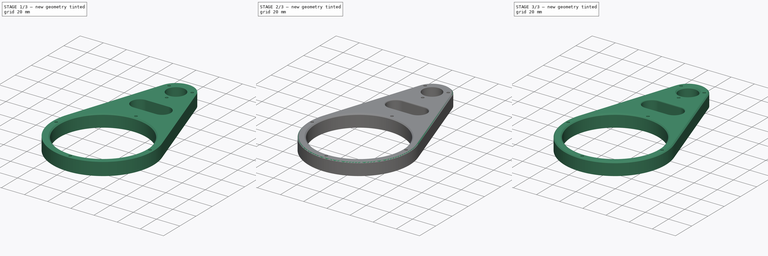
[diagram: build sequence overview — one tinted view per stage of 3, left to right]
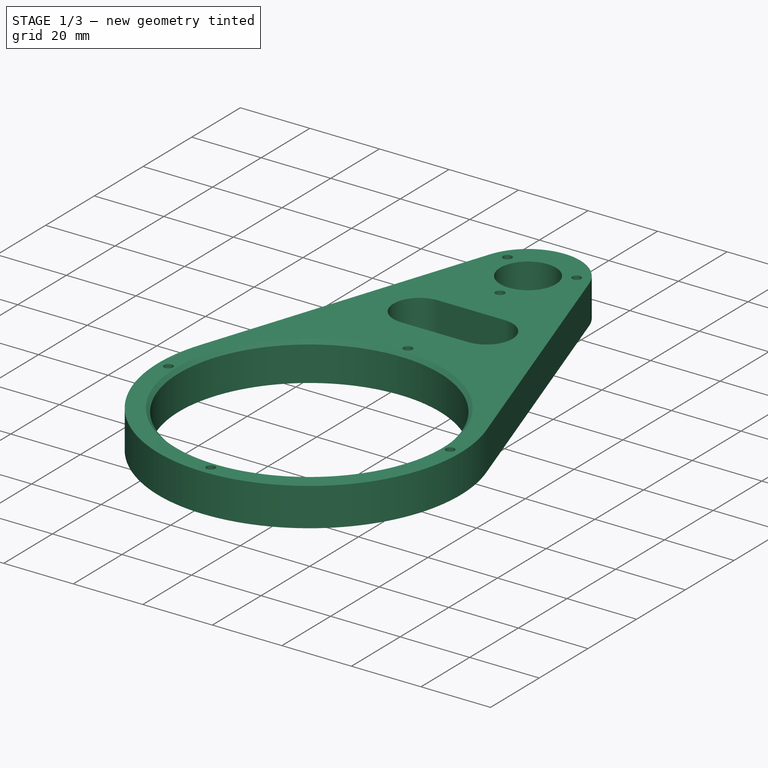
[diagram: stage 1 of 3 — iso view after this stage's code; geometry added in this stage tinted green]
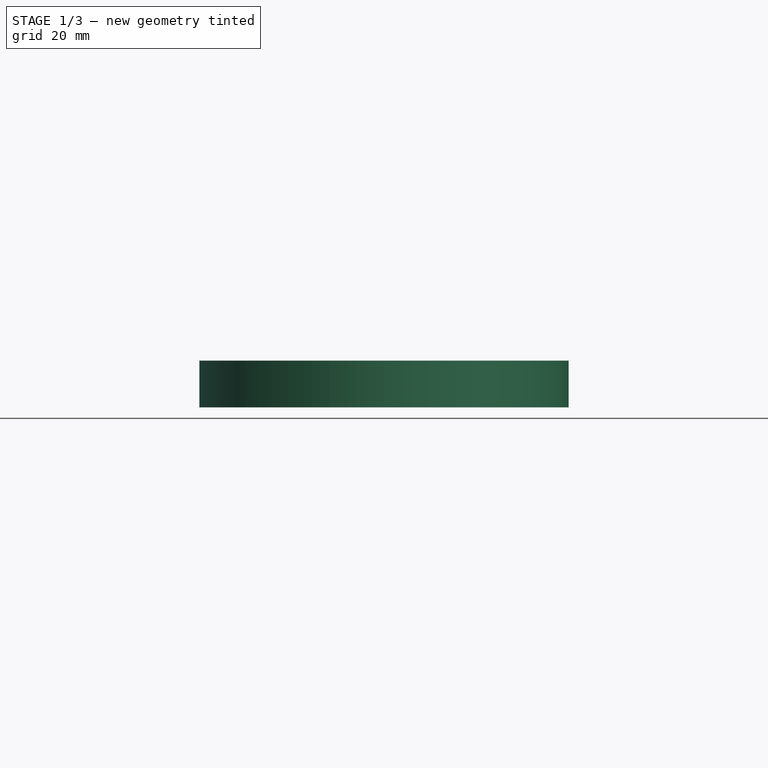
[diagram: stage 1 of 3 — front view after this stage's code; geometry added in this stage tinted green]
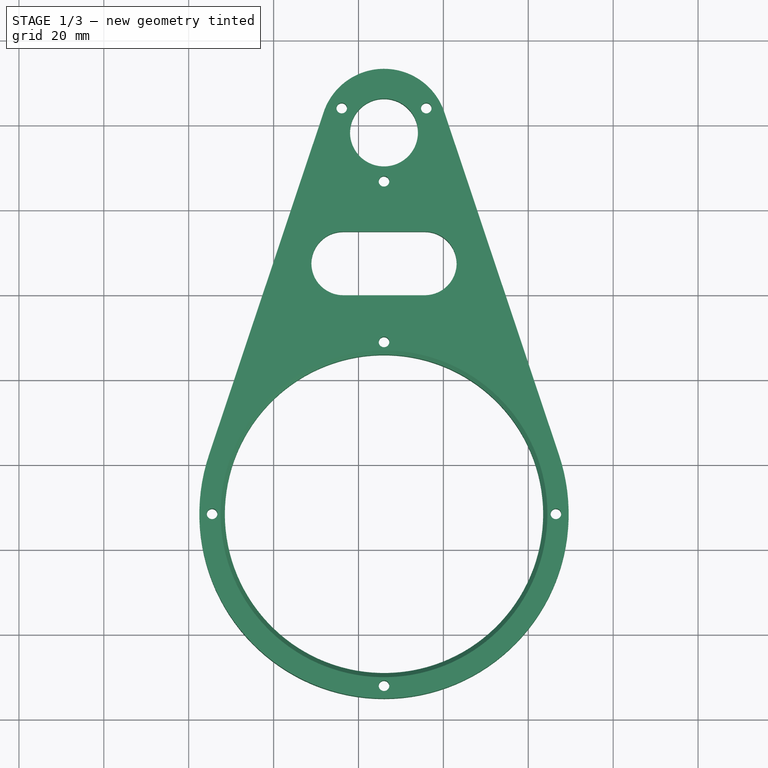
[diagram: stage 1 of 3 — top view after this stage's code; geometry added in this stage tinted green]
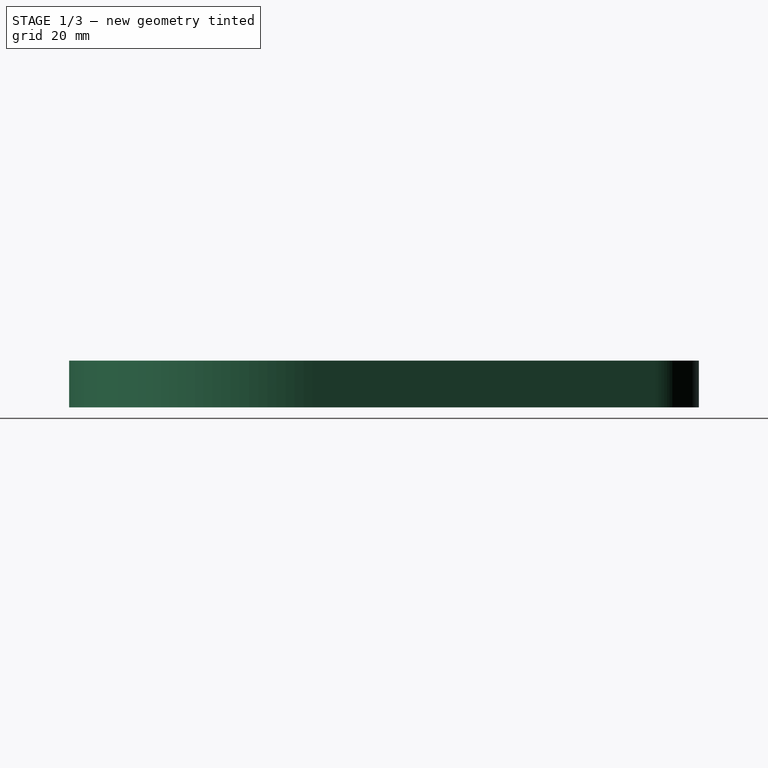
[diagram: stage 1 of 3 — right view after this stage's code; geometry added in this stage tinted green]
FCSTD DOCUMENT  (FreeCAD 0.19R24276 (Git))
Label: Shatun_L89_85__d75_d16
License: All rights reserved
LicenseURL: http://en.wikipedia.org/wiki/All_rights_reserved
objects: PartDesign::Chamfer×4, Sketcher::SketchObject×2, PartDesign::Pad×1, PartDesign::Fillet×1, PartDesign::Body×1
note: 15 computed .brp shape members not serialized (recipe doc carries the construction recipe); baked Part::Feature solids carry a one-line shape summary decoded from their .brp

FEATURE [Sketcher::SketchObject] Sketch  label="Sketch_paper_knife"
  FullyConstrained = false
  MapMode = 5
  Support = -> [XY_Plane]
  sketch-geometry (42):
    g0: Circle CenterX=0 CenterY=0 CenterZ=0 NormalX=0 NormalY=0 NormalZ=1 AngleXU=0 Radius=70
    g1: LineSegment StartX=0 StartY=0 StartZ=0 EndX=-30.5434 EndY=62.9849 EndZ=0
    g2: Circle CenterX=200 CenterY=0 CenterZ=0 NormalX=0 NormalY=0 NormalZ=1 AngleXU=0 Radius=70
    g3: LineSegment StartX=200 StartY=0 StartZ=0 EndX=169.457 EndY=62.9849 EndZ=0
    g4: LineSegment StartX=169.457 StartY=62.9849 StartZ=0 EndX=-30.5434 EndY=62.9849 EndZ=0
    g5: LineSegment StartX=-234.473 StartY=320.288 StartZ=0 EndX=-134.473 EndY=320.288 EndZ=0
    g6: LineSegment StartX=-224.473 StartY=338.288 StartZ=0 EndX=-124.473 EndY=338.288 EndZ=0
    g7: LineSegment StartX=-134.473 StartY=320.288 StartZ=0 EndX=-124.473 EndY=338.288 EndZ=0
    g8: LineSegment StartX=-234.473 StartY=320.288 StartZ=0 EndX=-224.473 EndY=338.288 EndZ=0
    g9: Circle CenterX=-140.473 CenterY=329.288 CenterZ=0 NormalX=0 NormalY=0 NormalZ=1 AngleXU=0 Radius=2.3784
    g10: LineSegment StartX=-233.473 StartY=322.088 StartZ=0 EndX=-133.473 EndY=322.088 EndZ=0
    g11: Circle CenterX=0 CenterY=0 CenterZ=0 NormalX=0 NormalY=0 NormalZ=1 AngleXU=0 Radius=37.5
    g12: Circle CenterX=200 CenterY=0 CenterZ=0 NormalX=0 NormalY=0 NormalZ=1 AngleXU=0 Radius=37.5
    g13: Circle CenterX=169.457 CenterY=62.9849 CenterZ=0 NormalX=0 NormalY=0 NormalZ=1 AngleXU=0 Radius=8
    g14: Circle CenterX=-30.5434 CenterY=62.9849 CenterZ=0 NormalX=0 NormalY=0 NormalZ=1 AngleXU=0 Radius=8
    g15: Circle CenterX=169.457 CenterY=62.9849 CenterZ=0 NormalX=0 NormalY=0 NormalZ=1 AngleXU=0 Radius=2.5
    g16: Circle CenterX=-30.5434 CenterY=62.9849 CenterZ=0 NormalX=0 NormalY=0 NormalZ=1 AngleXU=0 Radius=2.5
    g17: Circle CenterX=22.2785 CenterY=154.482 CenterZ=0 NormalX=0 NormalY=0 NormalZ=1 AngleXU=0 Radius=2.5
    g18: LineSegment StartX=-100.221 StartY=182.69 StartZ=0 EndX=22.2785 EndY=182.69 EndZ=0
    g19: ArcOfCircle CenterX=27.0798 CenterY=159.482 CenterZ=0 NormalX=0 NormalY=0 NormalZ=1 AngleXU=0 Radius=16 StartAngle=4.17347 EndAngle=5.96536
    g20: LineSegment StartX=27.0798 StartY=159.482 StartZ=0 EndX=27.0798 EndY=143.482 EndZ=0
    g21: ArcOfCircle CenterX=-75.7215 CenterY=162.006 CenterZ=0 NormalX=0 NormalY=0 NormalZ=1 AngleXU=0 Radius=8 StartAngle=3.71141 EndAngle=5.43055
    g22: LineSegment StartX=-107.721 StartY=168.69 StartZ=0 EndX=-100.221 EndY=182.69 EndZ=0
    g23: LineSegment StartX=-107.721 StartY=168.69 StartZ=0 EndX=-103.721 EndY=157.69 EndZ=0
    g24: ArcOfCircle CenterX=-18.2109 CenterY=83.6932 CenterZ=0 NormalX=0 NormalY=0 NormalZ=1 AngleXU=0 Radius=72.29 StartAngle=1.03221 EndAngle=1.56403
    g25: LineSegment StartX=-17.7215 StartY=155.982 StartZ=0 EndX=-70.4575 EndY=155.982 EndZ=0
    g26: LineSegment StartX=-82.4575 StartY=157.69 StartZ=0 EndX=-103.721 EndY=157.69 EndZ=0
    g27: ArcOfCircle CenterX=16.2785 CenterY=157.242 CenterZ=0 NormalX=0 NormalY=0 NormalZ=1 AngleXU=0 Radius=26.1461 StartAngle=6.17743 EndAngle=7.62244
    g28: LineSegment StartX=22.2785 StartY=154.482 StartZ=0 EndX=42.2785 EndY=154.482 EndZ=0
    g29: LineSegment StartX=22.2785 StartY=154.482 StartZ=0 EndX=22.2785 EndY=182.69 EndZ=0
    g30: ArcOfCircle CenterX=-96.7215 CenterY=168.69 CenterZ=0 NormalX=0 NormalY=0 NormalZ=1 AngleXU=0 Radius=2.5 StartAngle=1.5708 EndAngle=4.71239
    g31: ArcOfCircle CenterX=-6.72148 CenterY=168.69 CenterZ=0 NormalX=0 NormalY=0 NormalZ=1 AngleXU=0 Radius=2.5 StartAngle=4.71239 EndAngle=7.85398
    g32: LineSegment StartX=-96.7215 StartY=166.19 StartZ=0 EndX=-6.72148 EndY=166.19 EndZ=0
    g33: LineSegment StartX=-96.7215 StartY=171.19 StartZ=0 EndX=-6.72148 EndY=171.19 EndZ=0
    g34: LineSegment StartX=-27.3628 StartY=293.719 StartZ=0 EndX=-27.3628 EndY=353.575 EndZ=0
    g35: LineSegment StartX=-190.721 StartY=159.69 StartZ=0 EndX=-90.7215 EndY=159.69 EndZ=0
    g36: LineSegment StartX=-180.721 StartY=177.69 StartZ=0 EndX=-80.7215 EndY=177.69 EndZ=0
    g37: LineSegment StartX=-90.7215 StartY=159.69 StartZ=0 EndX=-80.7215 EndY=177.69 EndZ=0
    g38: LineSegment StartX=-190.721 StartY=159.69 StartZ=0 EndX=-180.721 EndY=177.69 EndZ=0
    g39: Circle CenterX=-96.7215 CenterY=168.69 CenterZ=0 NormalX=0 NormalY=0 NormalZ=1 AngleXU=0 Radius=2.3784
    g40: LineSegment StartX=-189.721 StartY=161.49 StartZ=0 EndX=-89.7215 EndY=161.49 EndZ=0
    g41: LineSegment StartX=-69.9968 StartY=0.665106 StartZ=0 EndX=-139.997 EndY=0.665106 EndZ=0
  constraints (110):
    c: Coincident(g0,g-1)
    c: Coincident(g1,g-1)
    c: PointOnObject(g1,g0)
    c: Diameter(g0) = 140
    c: PointOnObject(g2,g-1)
    c: DistanceX(g-1,g2) = 200
    c: Equal(g2,g0)
    c: Coincident(g3,g2)
    c: PointOnObject(g3,g2)
    c: Coincident(g4,g3)
    c: Coincident(g4,g1)
    c: DistanceX(g4,g4) = 200
    c: Horizontal(g5)
    c: Horizontal(g6)
    c: Coincident(g7,g5)
    c: Coincident(g7,g6)
    c: Coincident(g8,g5)
    c: Coincident(g6,g8)
    c: Parallel(g8,g7)
    c: DistanceY(g5,g6) = 18
    c: DistanceX(g5,g5) = 100
    c: DistanceX(g5,g6) = 110
    c: DistanceX(g9,g5) = 6
    c: DistanceY(g5,g9) = 9
    c: PointOnObject(g10,g8)
    c: PointOnObject(g10,g7)
    c: Horizontal(g10)
    c: DistanceY(g5,g10) = 1.8
    c: Coincident(g11,g-1)
    c: Coincident(g12,g2)
    c: Equal(g12,g11)
    c: Diameter(g12) = 75
    c: Coincident(g13,g3)
    c: Diameter(g13) = 16
    c: Coincident(g14,g1)
    c: Equal(g14,g13)
    c: Coincident(g15,g3)
    c: Coincident(g16,g1)
    c: Equal(g16,g15)
    c: Diameter(g15) = 5
    c: Diameter(g17) = 5
    c: Horizontal(g18)
    c: Coincident(g20,g19)
    c: PointOnObject(g20,g19)
    c: Vertical(g20)
    c: DistanceX(g21,g17) = 98
    c: Diameter(g21) = 16
    c: DistanceX(g21,g21) = 12
    c: Coincident(g23,g22)
    c: DistanceX(g23,g17) = 126
    c: DistanceY(g23,g22) = 11
    c: DistanceY(g23,g22) = 25
    c: DistanceX(g24,g17) = 40
    c: Coincident(g19,g24)
    c: Diameter(g24) = 144.58
    c: Coincident(g25,g24)
    c: Coincident(g25,g21)
    c: Horizontal(g25)
    c: Coincident(g26,g21)
    c: Coincident(g26,g23)
    c: Horizontal(g26)
    c: DistanceX(g22,g23) = 4
    c: Coincident(g27,g19)
    c: Coincident(g18,g27)
    c: Coincident(g18,g22)
    c: DistanceX(g22,g18) = 7.5
    c: Coincident(g28,g17)
    c: Horizontal(g28)
    c: DistanceY(g20,g17) = 11
    c: Diameter(g19) = 32
    c: Coincident(g28,g19)
    c: Coincident(g29,g17)
    c: Coincident(g29,g18)
    c: Vertical(g29)
    c: DistanceX(g27,g17) = 6
    c: DistanceY(g17,g27) = 2.76
    c: DistanceX(g17,g19) = 20
    c: Tangent(g30,g33) = 1.5708
    c: Tangent(g30,g32) = -1.5708
    c: Tangent(g32,g31) = -1.5708
    c: Tangent(g33,g31) = 1.5708
    c: Horizontal(g32)
    c: Equal(g30,g31)
    c: Diameter(g31) = 5
    c: Vertical(g34)
    c: Horizontal(g35)
    c: Horizontal(g36)
    c: Coincident(g37,g35)
    c: Coincident(g37,g36)
    c: Coincident(g38,g35)
    c: Coincident(g36,g38)
    c: Parallel(g38,g37)
    c: DistanceY(g35,g36) = 18
    c: Equal(g5,g35) = 100
    c: DistanceX(g35,g36) = 110
    c: DistanceX(g39,g35) = 6
    c: DistanceY(g35,g39) = 9
    c: PointOnObject(g40,g38)
    c: PointOnObject(g40,g37)
    c: Horizontal(g40)
    c: DistanceY(g35,g40) = 1.8
    c: DistanceY(g23,g30) = 11
    c: Coincident(g39,g30)
    c: DistanceX(g23,g30) = 7
    c: DistanceX(g23,g31) = 97
    c: PointOnObject(g41,g0)
    c: Horizontal(g41)
    c: DistanceX(g41,g41) = 70
    c: DistanceX(g19,g17) = 3.41
    c: DistanceY(g17,g24) = 1.5
FEATURE [Sketcher::SketchObject] Sketch001  label="Sketch001_master_sketch"
  FullyConstrained = false
  MapMode = 5
  Support = -> [XY_Plane]
  sketch-geometry (45):
    g0: Circle CenterX=0 CenterY=0 CenterZ=0 NormalX=0 NormalY=0 NormalZ=1 AngleXU=0 Radius=70
    g1: LineSegment StartX=0 StartY=0 StartZ=0 EndX=-30.5451 EndY=62.9841 EndZ=0
    g2: Circle CenterX=200 CenterY=0 CenterZ=0 NormalX=0 NormalY=0 NormalZ=1 AngleXU=0 Radius=70
    g3: LineSegment StartX=200 StartY=0 StartZ=0 EndX=169.455 EndY=62.9841 EndZ=0
    g4: LineSegment StartX=169.455 StartY=62.9841 StartZ=0 EndX=-30.5451 EndY=62.9841 EndZ=0
    g5: Circle CenterX=0 CenterY=0 CenterZ=0 NormalX=0 NormalY=0 NormalZ=1 AngleXU=0 Radius=37.5
    g6: Circle CenterX=200 CenterY=0 CenterZ=0 NormalX=0 NormalY=0 NormalZ=1 AngleXU=0 Radius=37.5
    g7: Circle CenterX=169.455 CenterY=62.9841 CenterZ=0 NormalX=0 NormalY=0 NormalZ=1 AngleXU=0 Radius=8
    g8: Circle CenterX=-30.5451 CenterY=62.9841 CenterZ=0 NormalX=0 NormalY=0 NormalZ=1 AngleXU=0 Radius=8
    g9: Circle CenterX=169.455 CenterY=62.9841 CenterZ=0 NormalX=0 NormalY=0 NormalZ=1 AngleXU=0 Radius=2.5
    g10: Circle CenterX=-30.5451 CenterY=62.9841 CenterZ=0 NormalX=0 NormalY=0 NormalZ=1 AngleXU=0 Radius=2.5
    g11: Circle CenterX=146.009 CenterY=208.38 CenterZ=0 NormalX=0 NormalY=0 NormalZ=1 AngleXU=0 Radius=37.5
    g12: Circle CenterX=146.009 CenterY=298.23 CenterZ=0 NormalX=0 NormalY=0 NormalZ=1 AngleXU=0 Radius=8
    g13: ArcOfCircle CenterX=146.009 CenterY=298.23 CenterZ=0 NormalX=0 NormalY=0 NormalZ=1 AngleXU=0 Radius=15 StartAngle=0.322771 EndAngle=2.81882
    g14: LineSegment StartX=146.009 StartY=298.23 StartZ=0 EndX=160.235 EndY=302.988 EndZ=0
    g15: LineSegment StartX=146.009 StartY=298.23 StartZ=0 EndX=131.784 EndY=302.988 EndZ=0
    g16: ArcOfCircle CenterX=146.009 CenterY=208.38 CenterZ=0 NormalX=0 NormalY=0 NormalZ=1 AngleXU=0 Radius=43.5 StartAngle=2.81882 EndAngle=6.60596
    g17: LineSegment StartX=146.009 StartY=208.38 StartZ=0 EndX=187.263 EndY=222.178 EndZ=0
    g18: LineSegment StartX=146.009 StartY=208.38 StartZ=0 EndX=104.756 EndY=222.178 EndZ=0
    g19: LineSegment StartX=160.235 StartY=302.988 StartZ=0 EndX=187.263 EndY=222.178 EndZ=0
    g20: LineSegment StartX=104.756 StartY=222.178 StartZ=0 EndX=131.784 EndY=302.988 EndZ=0
    g21: LineSegment StartX=146.009 StartY=286.73 StartZ=0 EndX=155.969 EndY=303.98 EndZ=0
    g22: LineSegment StartX=155.969 StartY=303.98 StartZ=0 EndX=136.05 EndY=303.98 EndZ=0
    g23: LineSegment StartX=136.05 StartY=303.98 StartZ=0 EndX=146.009 EndY=286.73 EndZ=0
    g24: Circle CenterX=146.009 CenterY=298.23 CenterZ=0 NormalX=0 NormalY=0 NormalZ=1 AngleXU=0 Radius=11.5
    g25: Circle CenterX=155.969 CenterY=303.98 CenterZ=0 NormalX=0 NormalY=0 NormalZ=1 AngleXU=0 Radius=1.25
    g26: Circle CenterX=146.009 CenterY=286.73 CenterZ=0 NormalX=0 NormalY=0 NormalZ=1 AngleXU=0 Radius=1.25
    g27: Circle CenterX=136.05 CenterY=303.98 CenterZ=0 NormalX=0 NormalY=0 NormalZ=1 AngleXU=0 Radius=1.25
    g28: LineSegment StartX=146.009 StartY=248.88 StartZ=0 EndX=105.509 EndY=208.38 EndZ=0
    g29: LineSegment StartX=105.509 StartY=208.38 StartZ=0 EndX=146.009 EndY=167.88 EndZ=0
    g30: LineSegment StartX=146.009 StartY=167.88 StartZ=0 EndX=186.509 EndY=208.38 EndZ=0
    g31: LineSegment StartX=186.509 StartY=208.38 StartZ=0 EndX=146.009 EndY=248.88 EndZ=0
    g32: Circle CenterX=146.009 CenterY=208.38 CenterZ=0 NormalX=0 NormalY=0 NormalZ=1 AngleXU=0 Radius=40.5
    g33: Circle CenterX=146.009 CenterY=248.88 CenterZ=0 NormalX=0 NormalY=0 NormalZ=1 AngleXU=0 Radius=1.25
    g34: Circle CenterX=186.509 CenterY=208.38 CenterZ=0 NormalX=0 NormalY=0 NormalZ=1 AngleXU=0 Radius=1.25
    g35: Circle CenterX=146.009 CenterY=167.88 CenterZ=0 NormalX=0 NormalY=0 NormalZ=1 AngleXU=0 Radius=1.25
    g36: Circle CenterX=105.509 CenterY=208.38 CenterZ=0 NormalX=0 NormalY=0 NormalZ=1 AngleXU=0 Radius=1.25
    g37: LineSegment StartX=146.009 StartY=298.23 StartZ=0 EndX=146.009 EndY=208.38 EndZ=0
    g38: LineSegment StartX=146.009 StartY=208.38 StartZ=0 EndX=146.009 EndY=167.88 EndZ=0
    g39: LineSegment StartX=146.009 StartY=298.23 StartZ=0 EndX=146.009 EndY=286.73 EndZ=0
    g40: ArcOfCircle CenterX=136.405 CenterY=267.38 CenterZ=0 NormalX=0 NormalY=0 NormalZ=1 AngleXU=0 Radius=7.5 StartAngle=1.5708 EndAngle=4.71239
    g41: ArcOfCircle CenterX=155.614 CenterY=267.38 CenterZ=0 NormalX=0 NormalY=0 NormalZ=1 AngleXU=0 Radius=7.5 StartAngle=4.71239 EndAngle=7.85398
    g42: LineSegment StartX=136.405 StartY=259.88 StartZ=0 EndX=155.614 EndY=259.88 EndZ=0
    g43: LineSegment StartX=136.405 StartY=274.88 StartZ=0 EndX=155.614 EndY=274.88 EndZ=0
    g44: LineSegment StartX=146.009 StartY=248.88 StartZ=0 EndX=146.009 EndY=267.38 EndZ=0
  constraints (104):
    c: Coincident(g0,g-1)
    c: Coincident(g1,g-1)
    c: PointOnObject(g1,g0)
    c: Diameter(g0) = 140
    c: PointOnObject(g2,g-1)
    c: DistanceX(g-1,g2) = 200
    c: Equal(g2,g0)
    c: Coincident(g3,g2)
    c: PointOnObject(g3,g2)
    c: Coincident(g4,g3)
    c: Coincident(g4,g1)
    c: DistanceX(g4,g4) = 200
    c: Coincident(g5,g-1)
    c: Coincident(g6,g2)
    c: Equal(g6,g5)
    c: Diameter(g6) = 75
    c: Coincident(g7,g3)
    c: Diameter(g7) = 16
    c: Coincident(g8,g1)
    c: Equal(g8,g7)
    c: Coincident(g9,g3)
    c: Coincident(g10,g1)
    c: Equal(g10,g9)
    c: Diameter(g9) = 5
    c: Diameter(g11) = 75
    c: Diameter(g12) = 16
    c: Diameter(g13) = 30
    c: Coincident(g16,g11)
    c: Diameter(g16) = 87
    c: Coincident(g17,g11)
    c: Coincident(g18,g11)
    c: Coincident(g19,g14)
    c: Coincident(g19,g17)
    c: Coincident(g20,g18)
    c: Coincident(g20,g15)
    c: Perpendicular(g17,g19)
    c: Perpendicular(g18,g20)
    c: Perpendicular(g19,g14)
    c: Perpendicular(g20,g15)
    c: Coincident(g16,g17)
    c: Coincident(g16,g18)
    c: Coincident(g13,g14)
    c: Coincident(g13,g15)
    c: Coincident(g21,g22)
    c: Coincident(g22,g23)
    c: Coincident(g23,g21)
    c: Equal(g21,g22)
    c: Equal(g21,g23)
    c: PointOnObject(g21,g24)
    c: PointOnObject(g22,g24)
    c: PointOnObject(g23,g24)
    c: Coincident(g24,g12)
    c: Diameter(g24) = 23
    c: Coincident(g25,g21)
    c: Coincident(g26,g21)
    c: Coincident(g27,g22)
    c: Diameter(g27) = 2.5
    c: Equal(g27,g25)
    c: Equal(g27,g26)
    c: Coincident(g28,g29)
    c: Coincident(g29,g30)
    c: Coincident(g30,g31)
    c: Coincident(g31,g28)
    c: Equal(g28,g29)
    c: Equal(g28,g30)
    c: Equal(g28,g31)
    c: PointOnObject(g28,g32)
    c: PointOnObject(g29,g32)
    c: PointOnObject(g30,g32)
    c: PointOnObject(g31,g32)
    c: Coincident(g32,g11)
    c: Diameter(g32) = 81
    c: Coincident(g33,g28)
    c: Coincident(g34,g30)
    c: Coincident(g35,g29)
    c: Coincident(g36,g28)
    c: Diameter(g36) = 2.5
    c: Equal(g36,g33)
    c: Equal(g36,g34)
    c: Equal(g36,g35)
    c: Coincident(g37,g11)
    c: Vertical(g37)
    c: Coincident(g37,g12)
    c: Coincident(g15,g12)
    c: Coincident(g14,g12)
    c: Coincident(g12,g13)
    c: Coincident(g38,g11)
    c: Coincident(g38,g35)
    c: Vertical(g38)
    c: Coincident(g39,g12)
    c: Coincident(g39,g26)
    c: Vertical(g39)
    c: Tangent(g40,g43) = 1.5708
    c: Tangent(g40,g42) = -1.5708
    c: Tangent(g42,g41) = -1.5708
    c: Tangent(g43,g41) = 1.5708
    c: Horizontal(g42)
    c: Equal(g40,g41)
    c: Coincident(g44,g33)
    c: Symmetric(g40,g41,g44)
    c: Vertical(g44)
    c: DistanceY(g33,g44) = 18.5
    c: Diameter(g41) = 15
    c: DistanceY(g11,g12) = 89.85
FEATURE [PartDesign::Pad] Pad
  Direction = (1,1,1)
  Length = 11
  Length2 = 100
  Profile = -> Sketch001
  Type = 0
FEATURE [PartDesign::Chamfer] Chamfer
  Angle = 45
  Base = -> Pad [Edge15,Edge18]
  BaseFeature = -> Pad
  ChamferType = 0
  FlipDirection = false
  Size = 1
  Size2 = 1
  SupportTransform = false
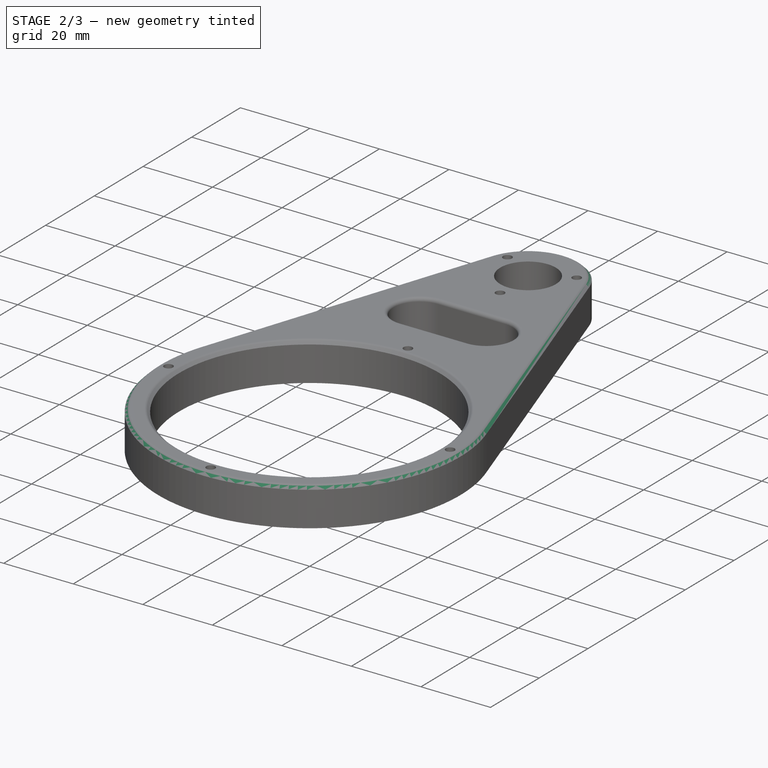
[diagram: stage 2 of 3 — iso view after this stage's code; geometry added in this stage tinted green]
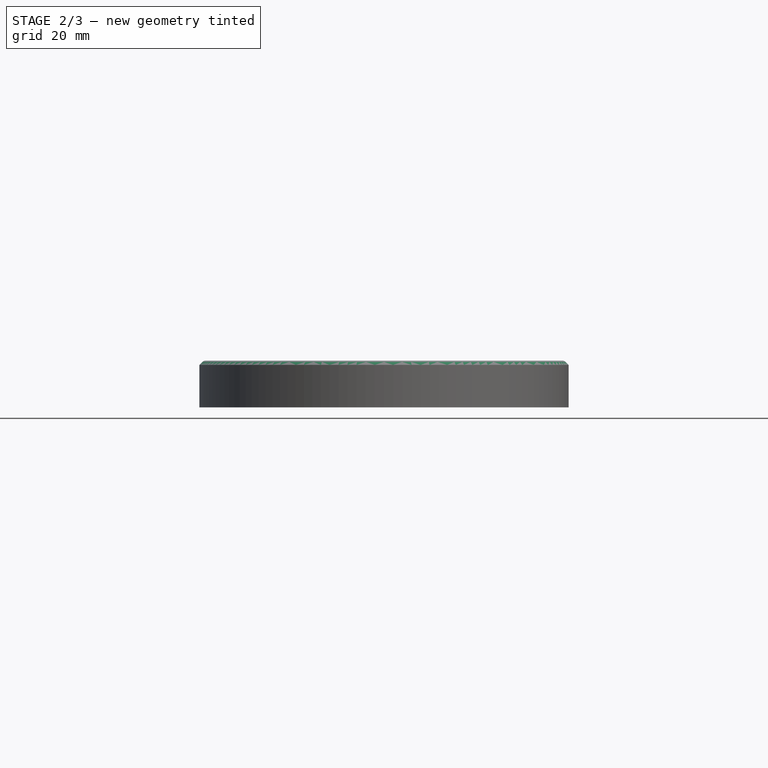
[diagram: stage 2 of 3 — front view after this stage's code; geometry added in this stage tinted green]
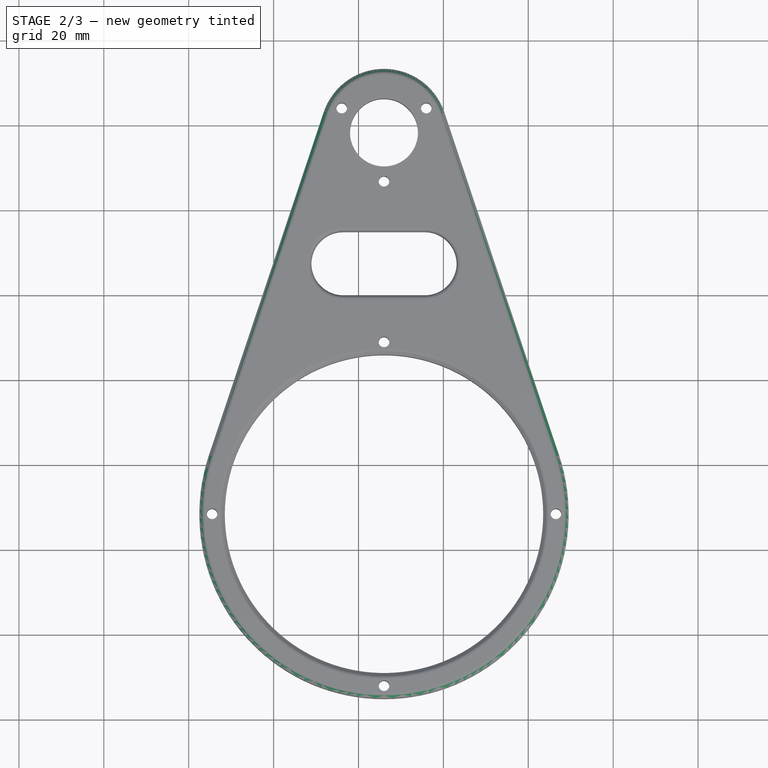
[diagram: stage 2 of 3 — top view after this stage's code; geometry added in this stage tinted green]
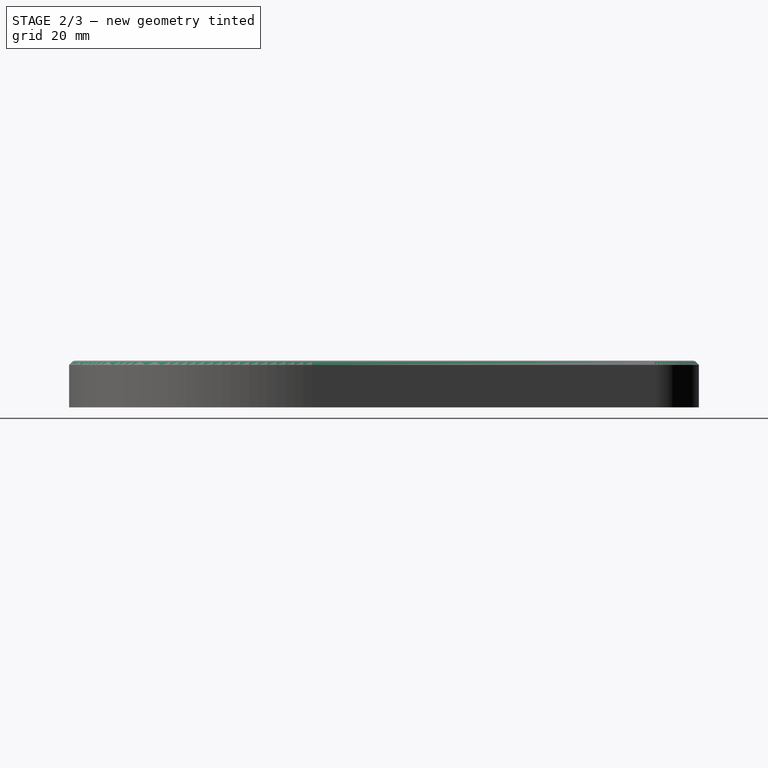
[diagram: stage 2 of 3 — right view after this stage's code; geometry added in this stage tinted green]
FEATURE [PartDesign::Chamfer] Chamfer001
  Angle = 45
  Base = -> Chamfer [Edge23]
  BaseFeature = -> Chamfer
  ChamferType = 0
  FlipDirection = false
  Size = 1
  Size2 = 1
  SupportTransform = false
FEATURE [PartDesign::Fillet] Fillet
  Base = -> Chamfer001 [Edge6,Edge5,Edge4,Edge3]
  BaseFeature = -> Chamfer001
  Radius = 1
  SupportTransform = false
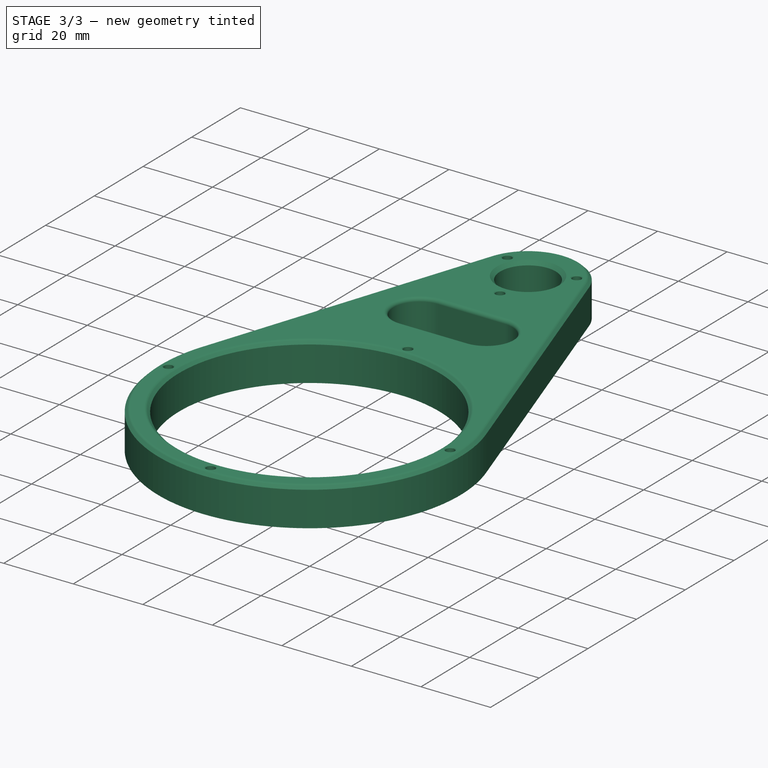
[diagram: stage 3 of 3 — iso view after this stage's code; geometry added in this stage tinted green]
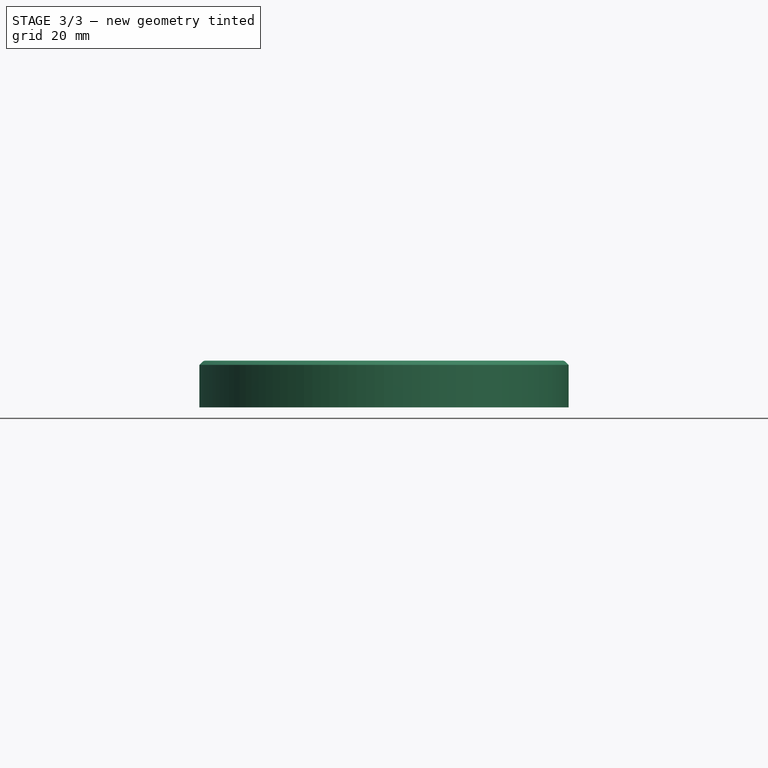
[diagram: stage 3 of 3 — front view after this stage's code; geometry added in this stage tinted green]
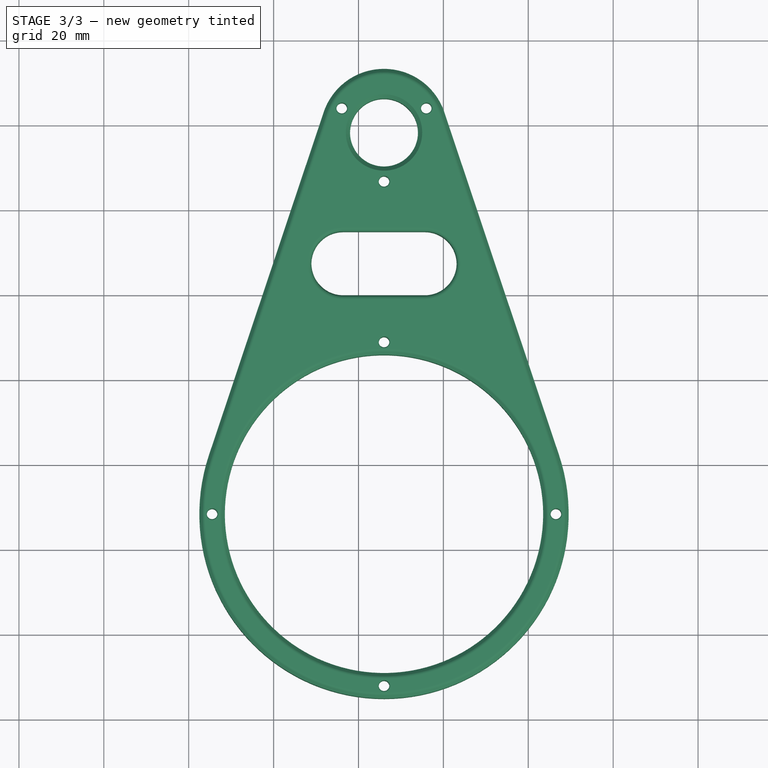
[diagram: stage 3 of 3 — top view after this stage's code; geometry added in this stage tinted green]
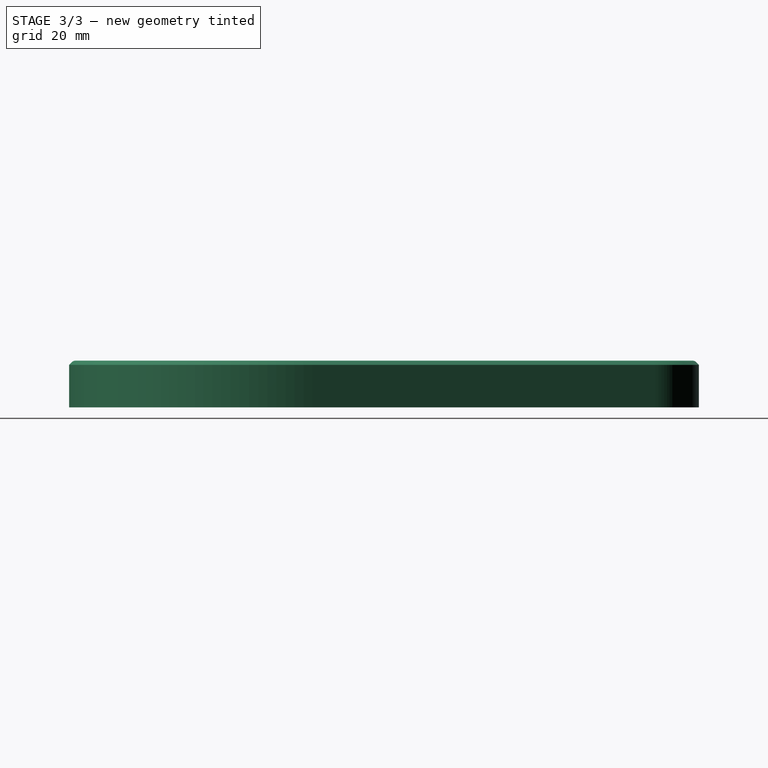
[diagram: stage 3 of 3 — right view after this stage's code; geometry added in this stage tinted green]
FEATURE [PartDesign::Chamfer] Chamfer002
  Angle = 45
  Base = -> Fillet [Edge11,Edge10,Edge12,Edge8,Edge7,Edge6,Edge9]
  BaseFeature = -> Fillet
  ChamferType = 0
  FlipDirection = false
  Size = 0.2
  Size2 = 1
  SupportTransform = false
FEATURE [PartDesign::Chamfer] Chamfer003
  Angle = 45
  Base = -> Chamfer002 [Edge6]
  BaseFeature = -> Chamfer002
  ChamferType = 0
  FlipDirection = false
  Size = 1
  Size2 = 1
  SupportTransform = false
FEATURE [PartDesign::Body] Body
  Group = -> [Sketch,Sketch001,Pad,Chamfer,Chamfer001,Fillet,Chamfer002,Chamfer003]
  Origin = -> Origin
  Tip = -> Chamfer003
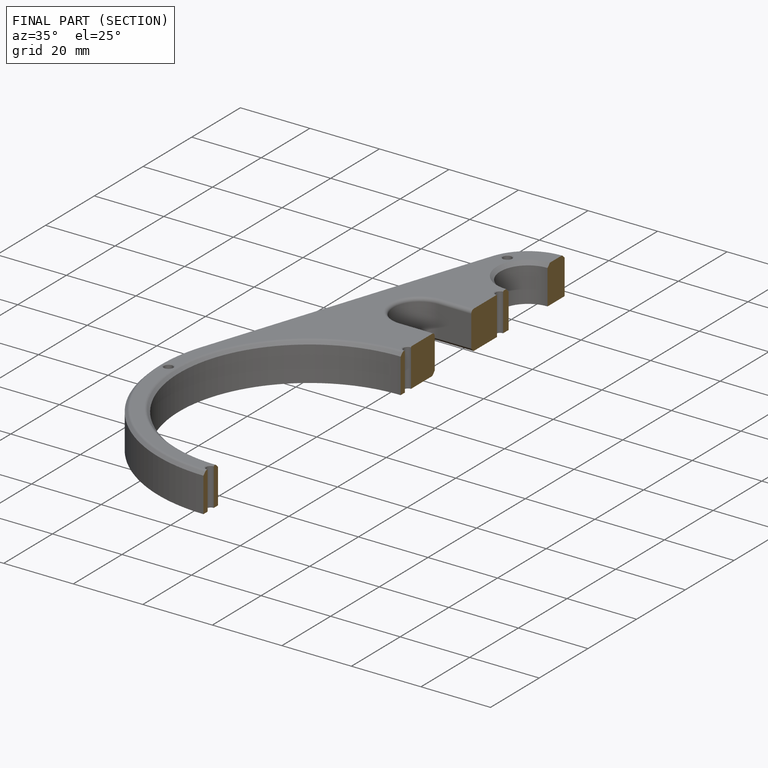
[diagram: finished part — half-section view (interior)]
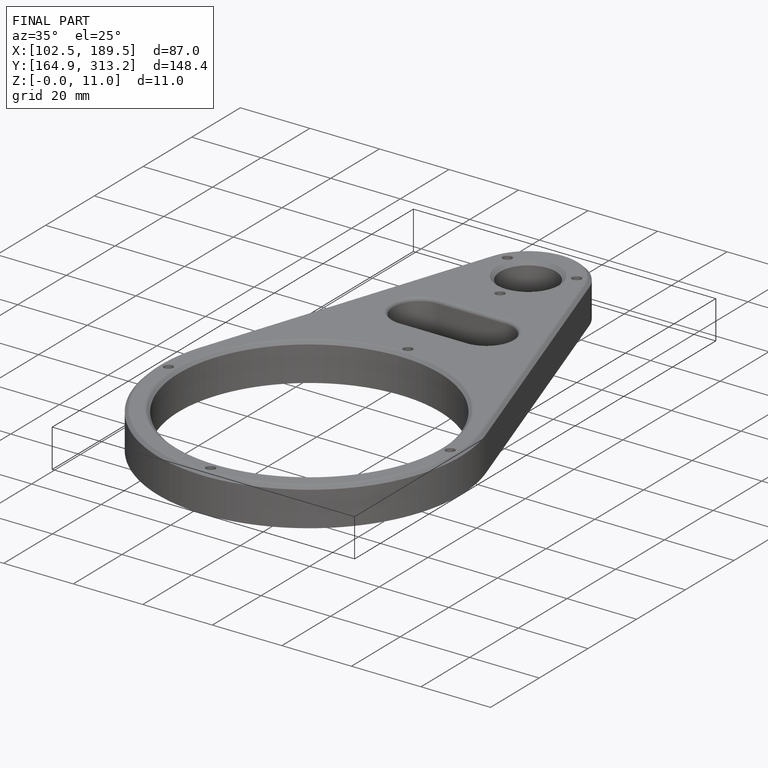
[diagram: finished part — iso view with bounding-box wireframe]
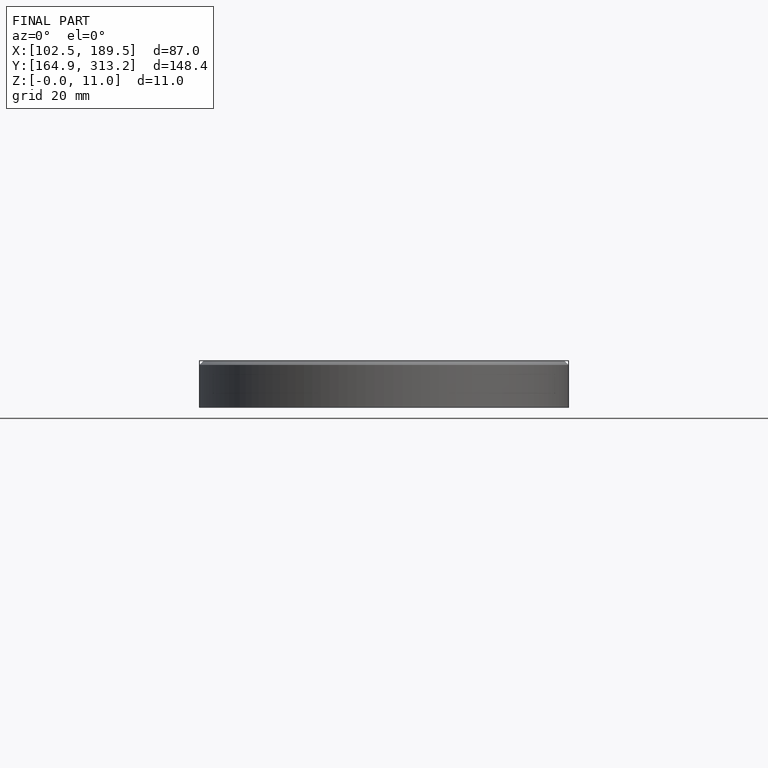
[diagram: finished part — front view with bounding-box wireframe]
